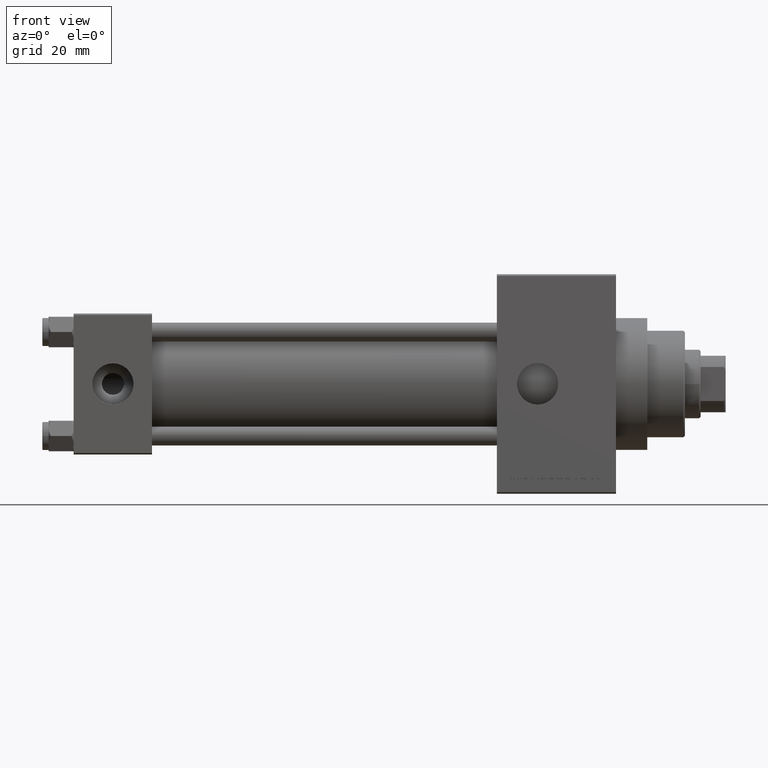
[diagram: clean part render]
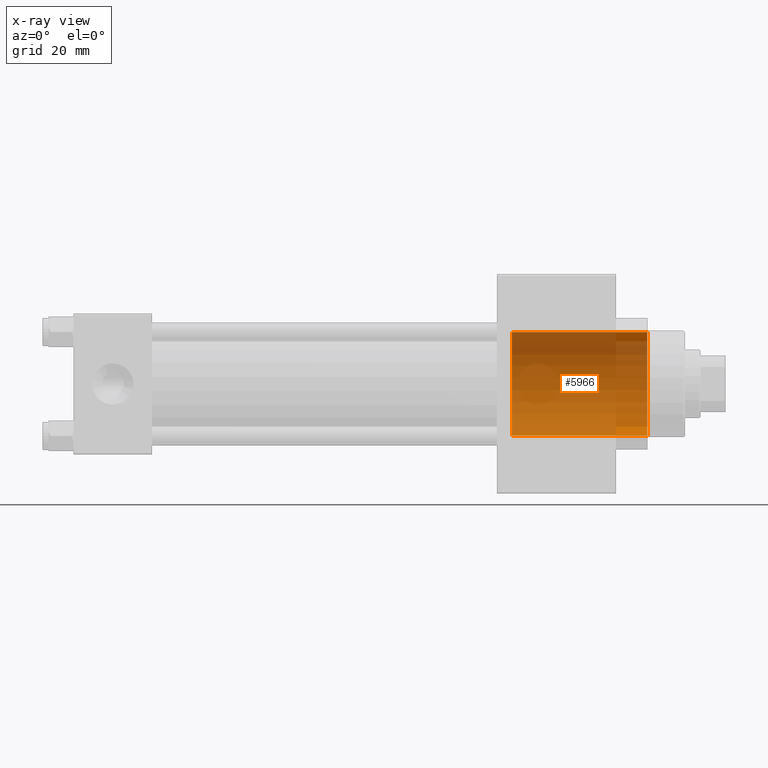
[diagram: x-ray — body ghosted, one internal face saturated and labeled with its STEP entity id]
A machine part, front view, then the same camera in x-ray: the body is ghosted and one INTERNAL B-rep face — a face not visible from any outside direction — is saturated and labeled: STEP entity #5966.
In plain terms, the highlighted cylindrical surface (partial cylindrical patch) has radius 16.5 mm, axis along (1, 0, 0).
Its self-contained STEP definition (entity closure, byte-faithful):
#376 = DIRECTION ( 'NONE',  ( 1.000000000000000000, 0.000000000000000000, 0.000000000000000000 ) ) ;
#1075 = CARTESIAN_POINT ( 'NONE',  ( 183.0000000000000284, 0.000000000000000000, 0.000000000000000000 ) ) ;
#1691 = DIRECTION ( 'NONE',  ( 1.000000000000000000, -0.000000000000000000, -0.000000000000000000 ) ) ;
#5499 = DIRECTION ( 'NONE',  ( 0.000000000000000000, 0.000000000000000000, -1.000000000000000000 ) ) ;
#5966 = ADVANCED_FACE ( 'NONE', ( #38600 ), #45058, .F. ) ;
#8590 = CARTESIAN_POINT ( 'NONE',  ( 183.0000000000000284, 0.000000000000000000, -16.50000000000000000 ) ) ;
#10737 = EDGE_CURVE ( 'NONE', #20043, #25305, #31566, .T. ) ;
#11479 = LINE ( 'NONE', #13292, #24450 ) ;
#11868 = CARTESIAN_POINT ( 'NONE',  ( 139.7400000000000375, 2.020667218593133100E-15, 16.50000000000000000 ) ) ;
#12300 = CARTESIAN_POINT ( 'NONE',  ( 183.0000000000000284, 2.020667218593133100E-15, 16.50000000000000000 ) ) ;
#13292 = CARTESIAN_POINT ( 'NONE',  ( 139.7400000000000375, 2.020667218593133100E-15, 16.50000000000000000 ) ) ;
#13643 = AXIS2_PLACEMENT_3D ( 'NONE', #1075, #376, #18479 ) ;
#15275 = ORIENTED_EDGE ( 'NONE', *, *, #44235, .T. ) ;
#16342 = AXIS2_PLACEMENT_3D ( 'NONE', #39003, #38536, #20650 ) ;
#18479 = DIRECTION ( 'NONE',  ( 0.000000000000000000, 0.000000000000000000, -1.000000000000000000 ) ) ;
#18632 = VERTEX_POINT ( 'NONE', #8590 ) ;
#19442 = ORIENTED_EDGE ( 'NONE', *, *, #10737, .F. ) ;
#20043 = VERTEX_POINT ( 'NONE', #30675 ) ;
#20650 = DIRECTION ( 'NONE',  ( 0.000000000000000000, 0.000000000000000000, -1.000000000000000000 ) ) ;
#22496 = ORIENTED_EDGE ( 'NONE', *, *, #25577, .T. ) ;
#24450 = VECTOR ( 'NONE', #24917, 1000.000000000000000 ) ;
#24917 = DIRECTION ( 'NONE',  ( 1.000000000000000000, -0.000000000000000000, -0.000000000000000000 ) ) ;
#25305 = VERTEX_POINT ( 'NONE', #11868 ) ;
#25577 = EDGE_CURVE ( 'NONE', #18632, #32969, #25797, .T. ) ;
#25797 = CIRCLE ( 'NONE', #13643, 16.50000000000000000 ) ;
#26880 = AXIS2_PLACEMENT_3D ( 'NONE', #38130, #1691, #5499 ) ;
#30675 = CARTESIAN_POINT ( 'NONE',  ( 139.7400000000000375, 0.000000000000000000, -16.50000000000000000 ) ) ;
#31566 = CIRCLE ( 'NONE', #16342, 16.50000000000000000 ) ;
#31818 = EDGE_CURVE ( 'NONE', #25305, #32969, #11479, .T. ) ;
#32969 = VERTEX_POINT ( 'NONE', #12300 ) ;
#34076 = LINE ( 'NONE', #40999, #45065 ) ;
#34134 = EDGE_LOOP ( 'NONE', ( #35516, #19442, #15275, #22496 ) ) ;
#35516 = ORIENTED_EDGE ( 'NONE', *, *, #31818, .F. ) ;
#37431 = DIRECTION ( 'NONE',  ( 1.000000000000000000, -0.000000000000000000, -0.000000000000000000 ) ) ;
#38130 = CARTESIAN_POINT ( 'NONE',  ( 139.7400000000000375, 0.000000000000000000, 0.000000000000000000 ) ) ;
#38536 = DIRECTION ( 'NONE',  ( 1.000000000000000000, 0.000000000000000000, 0.000000000000000000 ) ) ;
#38600 = FACE_OUTER_BOUND ( 'NONE', #34134, .T. ) ;
#39003 = CARTESIAN_POINT ( 'NONE',  ( 139.7400000000000375, 0.000000000000000000, 0.000000000000000000 ) ) ;
#40999 = CARTESIAN_POINT ( 'NONE',  ( 139.7400000000000375, 0.000000000000000000, -16.50000000000000000 ) ) ;
#44235 = EDGE_CURVE ( 'NONE', #20043, #18632, #34076, .T. ) ;
#45058 = CYLINDRICAL_SURFACE ( 'NONE', #26880, 16.50000000000000000 ) ;
#45065 = VECTOR ( 'NONE', #37431, 1000.000000000000000 ) ;